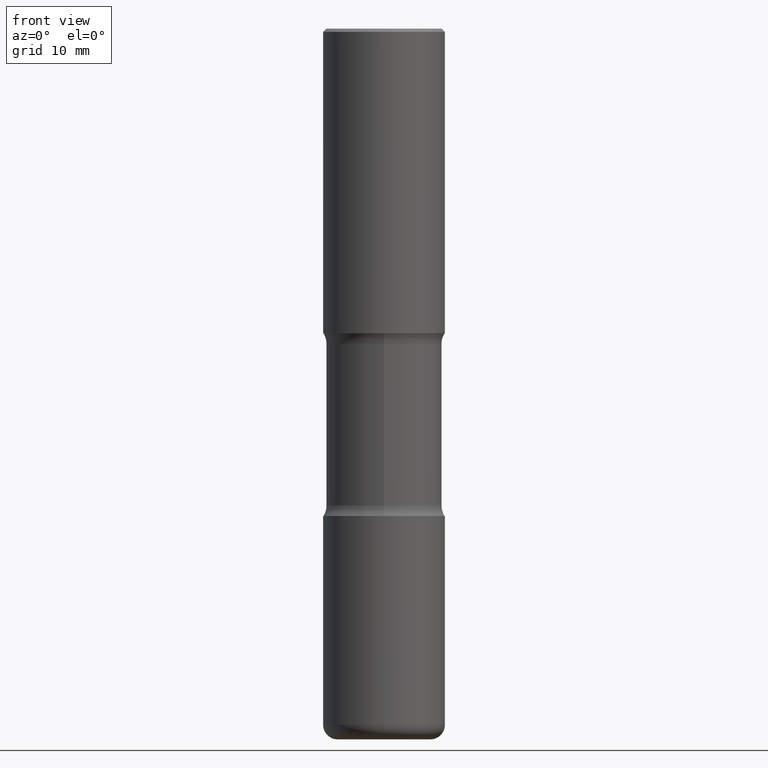
[diagram: clean part render]
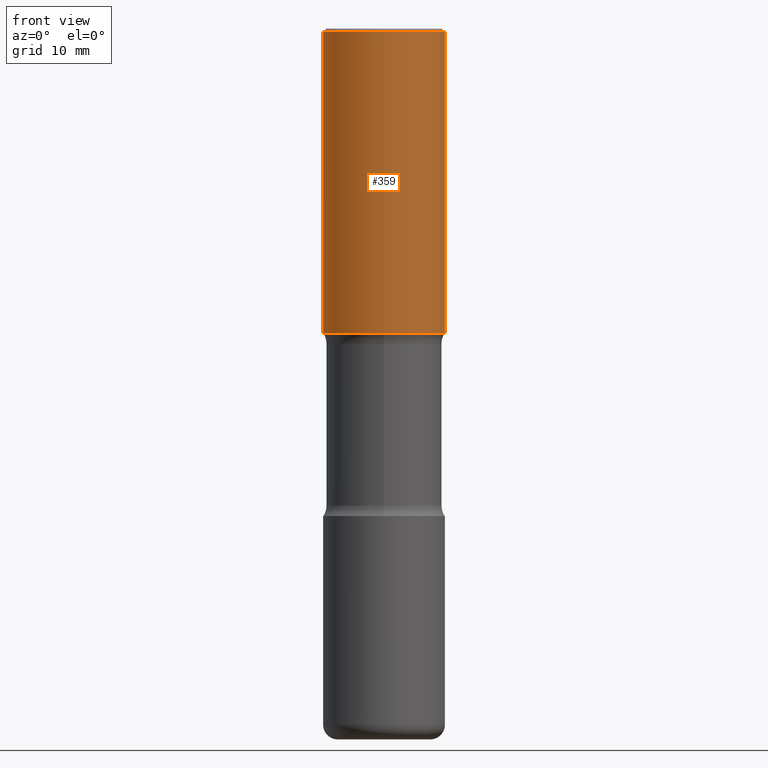
[diagram: same view with one face highlighted and labeled with its STEP entity id]
A machine part, front view. The second image highlights one B-rep face of the part: STEP entity #359.
In plain terms, the highlighted cylindrical surface (partial cylindrical patch) has radius 9.525 mm, axis along (-0, 0, 1).
Its self-contained STEP definition (entity closure, byte-faithful):
#16 = LINE ( 'NONE', #307, #406 ) ;
#25 = FACE_OUTER_BOUND ( 'NONE', #290, .T. ) ;
#27 = CARTESIAN_POINT ( 'NONE',  ( -0.3750000000000002220, 2.548781377355488296E-15, -0.02000000000000013572 ) ) ;
#41 = ORIENTED_EDGE ( 'NONE', *, *, #363, .F. ) ;
#62 = CIRCLE ( 'NONE', #450, 0.3750000000000002220 ) ;
#71 = CARTESIAN_POINT ( 'NONE',  ( 4.890937612370306439E-31, -6.982962677686338448E-17, -0.02000000000000013572 ) ) ;
#96 = ORIENTED_EDGE ( 'NONE', *, *, #265, .F. ) ;
#108 = DIRECTION ( 'NONE',  ( -2.445468806185136877E-29, 3.491481338843145188E-15, 1.000000000000000000 ) ) ;
#114 = CYLINDRICAL_SURFACE ( 'NONE', #539, 0.3750000000000003886 ) ;
#115 = VECTOR ( 'NONE', #108, 39.37007874015748143 ) ;
#118 = VERTEX_POINT ( 'NONE', #185 ) ;
#127 = VERTEX_POINT ( 'NONE', #404 ) ;
#145 = CARTESIAN_POINT ( 'NONE',  ( -0.3750000000000003886, 2.664535259100378458E-15, -1.844600658845591560E-29 ) ) ;
#158 = ORIENTED_EDGE ( 'NONE', *, *, #202, .T. ) ;
#162 = CARTESIAN_POINT ( 'NONE',  ( 0.000000000000000000, 0.000000000000000000, 0.000000000000000000 ) ) ;
#185 = CARTESIAN_POINT ( 'NONE',  ( -0.3750000000000004441, -6.436433094535026432E-16, -1.875000000000000666 ) ) ;
#194 = DIRECTION ( 'NONE',  ( -2.445468806185136597E-29, 3.491481338843145583E-15, 1.000000000000000000 ) ) ;
#202 = EDGE_CURVE ( 'NONE', #118, #127, #257, .T. ) ;
#238 = EDGE_CURVE ( 'NONE', #127, #453, #16, .T. ) ;
#257 = CIRCLE ( 'NONE', #352, 0.3750000000000004441 ) ;
#265 = EDGE_CURVE ( 'NONE', #382, #453, #62, .T. ) ;
#268 = DIRECTION ( 'NONE',  ( -2.445468806185136597E-29, 3.491481338843145583E-15, 1.000000000000000000 ) ) ;
#271 = CARTESIAN_POINT ( 'NONE',  ( 4.585254011597132801E-29, -6.546527510330900285E-15, -1.875000000000000666 ) ) ;
#288 = DIRECTION ( 'NONE',  ( -2.445468806185136597E-29, 3.491481338843145583E-15, 1.000000000000000000 ) ) ;
#290 = EDGE_LOOP ( 'NONE', ( #41, #158, #550, #96 ) ) ;
#307 = CARTESIAN_POINT ( 'NONE',  ( 0.3750000000000003886, -2.618611004132352383E-15, 1.828566290923477884E-29 ) ) ;
#335 = CARTESIAN_POINT ( 'NONE',  ( 0.3750000000000002220, -2.642516375941189606E-15, -0.02000000000000013572 ) ) ;
#352 = AXIS2_PLACEMENT_3D ( 'NONE', #271, #268, #442 ) ;
#359 = ADVANCED_FACE ( 'NONE', ( #25 ), #114, .T. ) ;
#363 = EDGE_CURVE ( 'NONE', #118, #382, #545, .T. ) ;
#373 = DIRECTION ( 'NONE',  ( -2.445468806185136877E-29, 3.491481338843145188E-15, 1.000000000000000000 ) ) ;
#382 = VERTEX_POINT ( 'NONE', #27 ) ;
#404 = CARTESIAN_POINT ( 'NONE',  ( 0.3750000000000004441, -9.165138514463253457E-15, -1.875000000000000666 ) ) ;
#406 = VECTOR ( 'NONE', #373, 39.37007874015748143 ) ;
#411 = DIRECTION ( 'NONE',  ( 1.000000000000000000, -6.982962677686266711E-15, 0.000000000000000000 ) ) ;
#442 = DIRECTION ( 'NONE',  ( 1.000000000000000000, -6.982962677686265133E-15, 0.000000000000000000 ) ) ;
#450 = AXIS2_PLACEMENT_3D ( 'NONE', #71, #288, #411 ) ;
#453 = VERTEX_POINT ( 'NONE', #335 ) ;
#501 = DIRECTION ( 'NONE',  ( 1.000000000000000000, -6.982962677686265922E-15, 4.876176775795935793E-29 ) ) ;
#539 = AXIS2_PLACEMENT_3D ( 'NONE', #162, #194, #501 ) ;
#545 = LINE ( 'NONE', #145, #115 ) ;
#550 = ORIENTED_EDGE ( 'NONE', *, *, #238, .T. ) ;